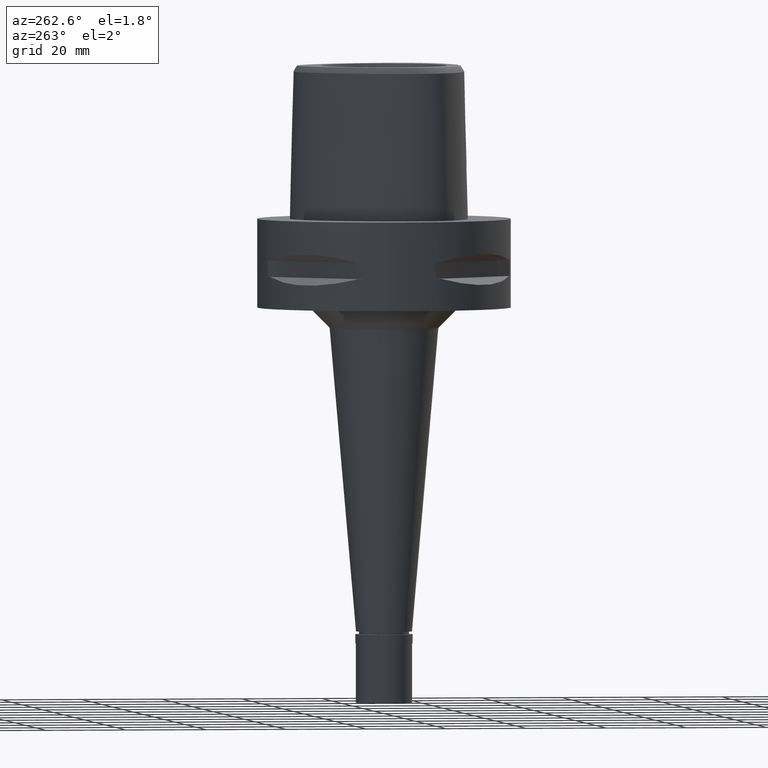
[diagram: clean part render]
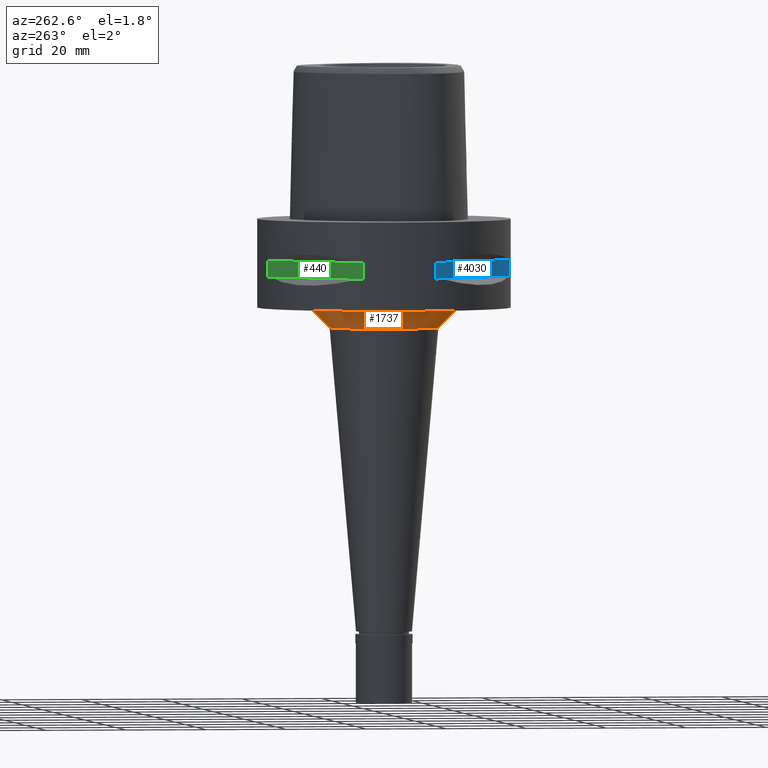
[diagram: same view with three faces highlighted in distinct colors, each labeled with its STEP entity id]
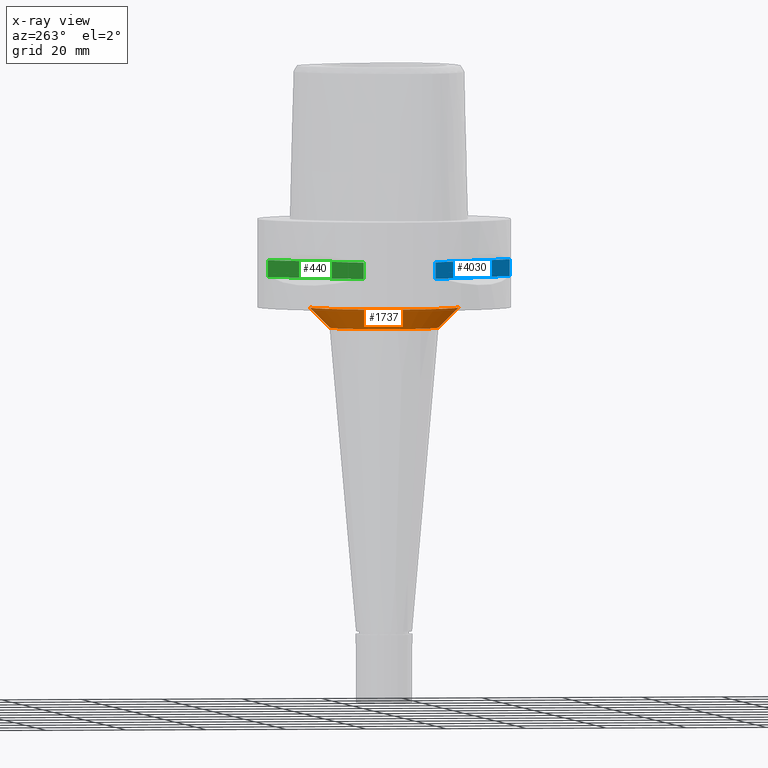
[diagram: x-ray of the same camera — body ghosted, the three highlighted faces saturated]
A machine part, auxiliary view with three faces highlighted in distinct colors.
The next image is the same camera in x-ray (body ghosted, the three faces saturated) — at least one of them is partly hidden behind the body in this view.
Their STEP definitions:

[orange] entity #1737 — the highlighted conical surface has half-angle 45 deg.
#9 = AXIS2_PLACEMENT_3D ( 'NONE', #4919, #4202, #1906 ) ;
#100 = DIRECTION ( 'NONE',  ( 0.0000000000000000000, 0.0000000000000000000, -1.000000000000000000 ) ) ;
#218 = EDGE_CURVE ( 'NONE', #2493, #2468, #3455, .T. ) ;
#237 = AXIS2_PLACEMENT_3D ( 'NONE', #846, #100, #1259 ) ;
#452 = CARTESIAN_POINT ( 'NONE',  ( 0.0000000000000000000, 13.58789636350000052, -27.00000000000000000 ) ) ;
#846 = CARTESIAN_POINT ( 'NONE',  ( 0.0000000000000000000, 0.0000000000000000000, -22.00000000000000000 ) ) ;
#1025 = ORIENTED_EDGE ( 'NONE', *, *, #3582, .F. ) ;
#1185 = EDGE_LOOP ( 'NONE', ( #1025, #4366, #4812, #3145 ) ) ;
#1259 = DIRECTION ( 'NONE',  ( 0.0000000000000000000, -1.000000000000000000, 0.0000000000000000000 ) ) ;
#1264 = AXIS2_PLACEMENT_3D ( 'NONE', #3149, #2049, #4663 ) ;
#1437 = VERTEX_POINT ( 'NONE', #3144 ) ;
#1466 = LINE ( 'NONE', #4875, #3207 ) ;
#1576 = CIRCLE ( 'NONE', #1264, 13.58789636350000052 ) ;
#1737 = ADVANCED_FACE ( 'NONE', ( #4600 ), #2505, .T. ) ;
#1874 = LINE ( 'NONE', #3415, #3272 ) ;
#1906 = DIRECTION ( 'NONE',  ( 0.0000000000000000000, 1.000000000000000000, 0.0000000000000000000 ) ) ;
#2049 = DIRECTION ( 'NONE',  ( 0.0000000000000000000, 0.0000000000000000000, -1.000000000000000000 ) ) ;
#2148 = VERTEX_POINT ( 'NONE', #452 ) ;
#2468 = VERTEX_POINT ( 'NONE', #3724 ) ;
#2493 = VERTEX_POINT ( 'NONE', #4205 ) ;
#2505 = CONICAL_SURFACE ( 'NONE', #9, 16.08789636349999697, 0.7853981633972997312 ) ;
#3144 = CARTESIAN_POINT ( 'NONE',  ( 0.0000000000000000000, -13.58789636350000052, -27.00000000000000000 ) ) ;
#3145 = ORIENTED_EDGE ( 'NONE', *, *, #3299, .T. ) ;
#3149 = CARTESIAN_POINT ( 'NONE',  ( 0.0000000000000000000, 0.0000000000000000000, -27.00000000000000000 ) ) ;
#3207 = VECTOR ( 'NONE', #4899, 1000.000000000000000 ) ;
#3272 = VECTOR ( 'NONE', #4139, 1000.000000000000000 ) ;
#3299 = EDGE_CURVE ( 'NONE', #2468, #2148, #1874, .T. ) ;
#3415 = CARTESIAN_POINT ( 'NONE',  ( 0.0000000000000000000, 18.58789636350000052, -22.00000000000000000 ) ) ;
#3455 = CIRCLE ( 'NONE', #237, 18.58789636350000052 ) ;
#3582 = EDGE_CURVE ( 'NONE', #1437, #2148, #1576, .T. ) ;
#3724 = CARTESIAN_POINT ( 'NONE',  ( 0.0000000000000000000, 18.58789636350000052, -22.00000000000000000 ) ) ;
#4102 = EDGE_CURVE ( 'NONE', #2493, #1437, #1466, .T. ) ;
#4139 = DIRECTION ( 'NONE',  ( 0.0000000000000000000, -0.7071067811864980568, -0.7071067811865969777 ) ) ;
#4202 = DIRECTION ( 'NONE',  ( 0.0000000000000000000, 0.0000000000000000000, 1.000000000000000000 ) ) ;
#4205 = CARTESIAN_POINT ( 'NONE',  ( 0.0000000000000000000, -18.58789636350000052, -22.00000000000000000 ) ) ;
#4366 = ORIENTED_EDGE ( 'NONE', *, *, #4102, .F. ) ;
#4600 = FACE_OUTER_BOUND ( 'NONE', #1185, .T. ) ;
#4663 = DIRECTION ( 'NONE',  ( 0.0000000000000000000, -1.000000000000000000, 0.0000000000000000000 ) ) ;
#4812 = ORIENTED_EDGE ( 'NONE', *, *, #218, .T. ) ;
#4875 = CARTESIAN_POINT ( 'NONE',  ( 0.0000000000000000000, -18.58789636350000052, -22.00000000000000000 ) ) ;
#4899 = DIRECTION ( 'NONE',  ( 0.0000000000000000000, 0.7071067811864980568, -0.7071067811865969777 ) ) ;
#4919 = CARTESIAN_POINT ( 'NONE',  ( 0.0000000000000000000, 0.0000000000000000000, -24.50000000000000000 ) ) ;

[blue] entity #4030 — the highlighted planar face has unit normal (0.7071, 0.7071, 0).
#412 = EDGE_CURVE ( 'NONE', #3553, #3730, #4894, .T. ) ;
#534 = VECTOR ( 'NONE', #3091, 1000.000000000000000 ) ;
#637 = EDGE_LOOP ( 'NONE', ( #2611, #2270, #921, #4189 ) ) ;
#921 = ORIENTED_EDGE ( 'NONE', *, *, #412, .T. ) ;
#969 = LINE ( 'NONE', #1749, #1532 ) ;
#1228 = CARTESIAN_POINT ( 'NONE',  ( -30.19251670572000279, -8.981198972017999438, -9.950000000000001066 ) ) ;
#1532 = VECTOR ( 'NONE', #4037, 1000.000000000000000 ) ;
#1552 = LINE ( 'NONE', #1228, #534 ) ;
#1628 = CARTESIAN_POINT ( 'NONE',  ( -30.19251670572000279, -8.981198972017999438, -14.05000000000000071 ) ) ;
#1663 = EDGE_CURVE ( 'NONE', #3730, #3245, #969, .T. ) ;
#1749 = CARTESIAN_POINT ( 'NONE',  ( -8.981198972017999438, -30.19251670572000279, -14.05000000000000071 ) ) ;
#1834 = CARTESIAN_POINT ( 'NONE',  ( -30.19251670572000279, -8.981198972017999438, -14.05000000000000071 ) ) ;
#1888 = CARTESIAN_POINT ( 'NONE',  ( -5.444722215136000187, -33.72899346260000186, -9.950000000000001066 ) ) ;
#2270 = ORIENTED_EDGE ( 'NONE', *, *, #4652, .T. ) ;
#2308 = CARTESIAN_POINT ( 'NONE',  ( -8.981198972017999438, -30.19251670572000279, -9.950000000000001066 ) ) ;
#2421 = VECTOR ( 'NONE', #2647, 1000.000000000000114 ) ;
#2607 = FACE_OUTER_BOUND ( 'NONE', #637, .T. ) ;
#2611 = ORIENTED_EDGE ( 'NONE', *, *, #3402, .F. ) ;
#2647 = DIRECTION ( 'NONE',  ( 0.7071067811865474617, -0.7071067811865474617, 0.0000000000000000000 ) ) ;
#2936 = CARTESIAN_POINT ( 'NONE',  ( -8.981198972019999616, -30.19251670572000279, -14.05000000000000071 ) ) ;
#2947 = AXIS2_PLACEMENT_3D ( 'NONE', #1888, #3825, #4108 ) ;
#3091 = DIRECTION ( 'NONE',  ( 0.0000000000000000000, 0.0000000000000000000, -1.000000000000000000 ) ) ;
#3245 = VERTEX_POINT ( 'NONE', #2308 ) ;
#3402 = EDGE_CURVE ( 'NONE', #3540, #3245, #3489, .T. ) ;
#3489 = LINE ( 'NONE', #4721, #4147 ) ;
#3540 = VERTEX_POINT ( 'NONE', #3960 ) ;
#3553 = VERTEX_POINT ( 'NONE', #1628 ) ;
#3730 = VERTEX_POINT ( 'NONE', #2936 ) ;
#3825 = DIRECTION ( 'NONE',  ( 0.7071067811865475727, 0.7071067811865475727, 0.0000000000000000000 ) ) ;
#3936 = DIRECTION ( 'NONE',  ( 0.7071067811865474617, -0.7071067811865474617, 0.0000000000000000000 ) ) ;
#3960 = CARTESIAN_POINT ( 'NONE',  ( -30.19251670572000279, -8.981198972019999616, -9.950000000000001066 ) ) ;
#4030 = ADVANCED_FACE ( 'NONE', ( #2607 ), #4585, .F. ) ;
#4037 = DIRECTION ( 'NONE',  ( 0.0000000000000000000, 0.0000000000000000000, 1.000000000000000000 ) ) ;
#4108 = DIRECTION ( 'NONE',  ( 0.0000000000000000000, 0.0000000000000000000, -1.000000000000000000 ) ) ;
#4147 = VECTOR ( 'NONE', #3936, 1000.000000000000114 ) ;
#4189 = ORIENTED_EDGE ( 'NONE', *, *, #1663, .T. ) ;
#4585 = PLANE ( 'NONE',  #2947 ) ;
#4652 = EDGE_CURVE ( 'NONE', #3540, #3553, #1552, .T. ) ;
#4721 = CARTESIAN_POINT ( 'NONE',  ( -30.19251670572000279, -8.981198972017999438, -9.950000000000001066 ) ) ;
#4894 = LINE ( 'NONE', #1834, #2421 ) ;

[green] entity #440 — the highlighted planar face has unit normal (0.7071, -0.7071, 0).
#66 = CARTESIAN_POINT ( 'NONE',  ( -30.19251670572000279, 8.981198972017999438, -14.05000000000000071 ) ) ;
#88 = VECTOR ( 'NONE', #2982, 1000.000000000000114 ) ;
#174 = CARTESIAN_POINT ( 'NONE',  ( -8.981198972019999616, 30.19251670572000279, -9.950000000000001066 ) ) ;
#239 = VERTEX_POINT ( 'NONE', #174 ) ;
#440 = ADVANCED_FACE ( 'NONE', ( #3378 ), #3817, .F. ) ;
#676 = LINE ( 'NONE', #4411, #88 ) ;
#696 = LINE ( 'NONE', #2975, #1525 ) ;
#697 = EDGE_CURVE ( 'NONE', #239, #2868, #696, .T. ) ;
#742 = EDGE_CURVE ( 'NONE', #2963, #2868, #1944, .T. ) ;
#765 = CARTESIAN_POINT ( 'NONE',  ( -30.19251670572000279, 8.981198972017999438, -9.950000000000001066 ) ) ;
#783 = DIRECTION ( 'NONE',  ( 0.0000000000000000000, 0.0000000000000000000, 1.000000000000000000 ) ) ;
#791 = CARTESIAN_POINT ( 'NONE',  ( -30.19251670572000279, 8.981198972017999438, -14.05000000000000071 ) ) ;
#1203 = AXIS2_PLACEMENT_3D ( 'NONE', #3452, #1905, #3079 ) ;
#1341 = EDGE_CURVE ( 'NONE', #2963, #4435, #4164, .T. ) ;
#1525 = VECTOR ( 'NONE', #3373, 1000.000000000000000 ) ;
#1661 = EDGE_CURVE ( 'NONE', #4435, #239, #676, .T. ) ;
#1905 = DIRECTION ( 'NONE',  ( 0.7071067811865475727, -0.7071067811865475727, 0.0000000000000000000 ) ) ;
#1914 = EDGE_LOOP ( 'NONE', ( #4251, #1961, #2838, #4165 ) ) ;
#1944 = LINE ( 'NONE', #791, #2571 ) ;
#1961 = ORIENTED_EDGE ( 'NONE', *, *, #697, .T. ) ;
#2186 = CARTESIAN_POINT ( 'NONE',  ( -8.981198972017999438, 30.19251670572000279, -14.05000000000000071 ) ) ;
#2337 = DIRECTION ( 'NONE',  ( 0.7071067811865474617, 0.7071067811865474617, 0.0000000000000000000 ) ) ;
#2571 = VECTOR ( 'NONE', #2337, 1000.000000000000114 ) ;
#2838 = ORIENTED_EDGE ( 'NONE', *, *, #742, .F. ) ;
#2850 = CARTESIAN_POINT ( 'NONE',  ( -30.19251670572000279, 8.981198972019999616, -14.05000000000000071 ) ) ;
#2868 = VERTEX_POINT ( 'NONE', #2186 ) ;
#2963 = VERTEX_POINT ( 'NONE', #2850 ) ;
#2975 = CARTESIAN_POINT ( 'NONE',  ( -8.981198972017999438, 30.19251670572000279, -9.950000000000001066 ) ) ;
#2982 = DIRECTION ( 'NONE',  ( 0.7071067811865474617, 0.7071067811865474617, 0.0000000000000000000 ) ) ;
#3079 = DIRECTION ( 'NONE',  ( 0.0000000000000000000, 0.0000000000000000000, -1.000000000000000000 ) ) ;
#3373 = DIRECTION ( 'NONE',  ( 0.0000000000000000000, 0.0000000000000000000, -1.000000000000000000 ) ) ;
#3378 = FACE_OUTER_BOUND ( 'NONE', #1914, .T. ) ;
#3452 = CARTESIAN_POINT ( 'NONE',  ( -33.72899346260000186, 5.444722215136000187, -9.950000000000001066 ) ) ;
#3817 = PLANE ( 'NONE',  #1203 ) ;
#4164 = LINE ( 'NONE', #66, #4738 ) ;
#4165 = ORIENTED_EDGE ( 'NONE', *, *, #1341, .T. ) ;
#4251 = ORIENTED_EDGE ( 'NONE', *, *, #1661, .T. ) ;
#4411 = CARTESIAN_POINT ( 'NONE',  ( -30.19251670572000279, 8.981198972017999438, -9.950000000000001066 ) ) ;
#4435 = VERTEX_POINT ( 'NONE', #765 ) ;
#4738 = VECTOR ( 'NONE', #783, 1000.000000000000000 ) ;